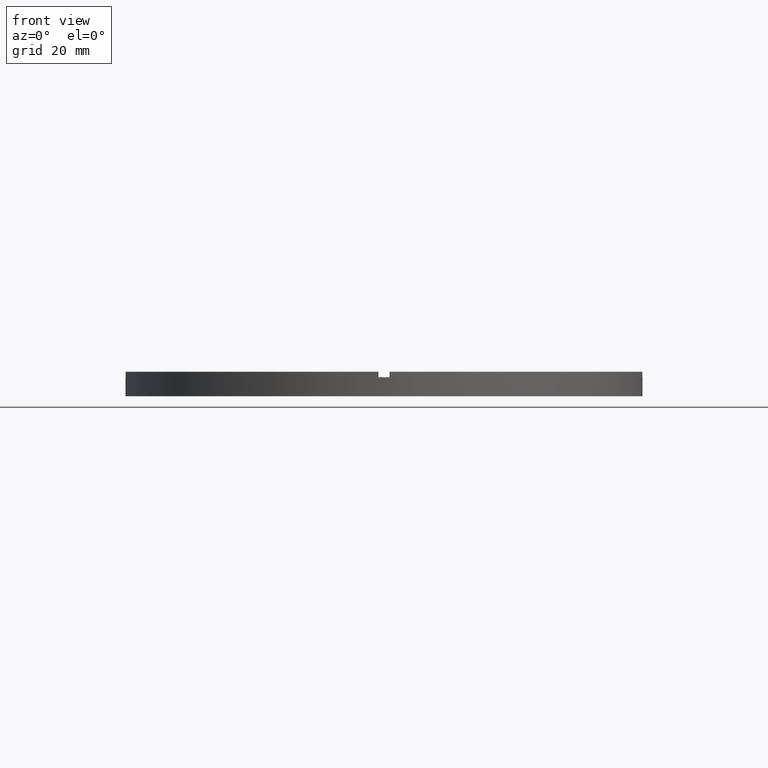
[diagram: clean part render]
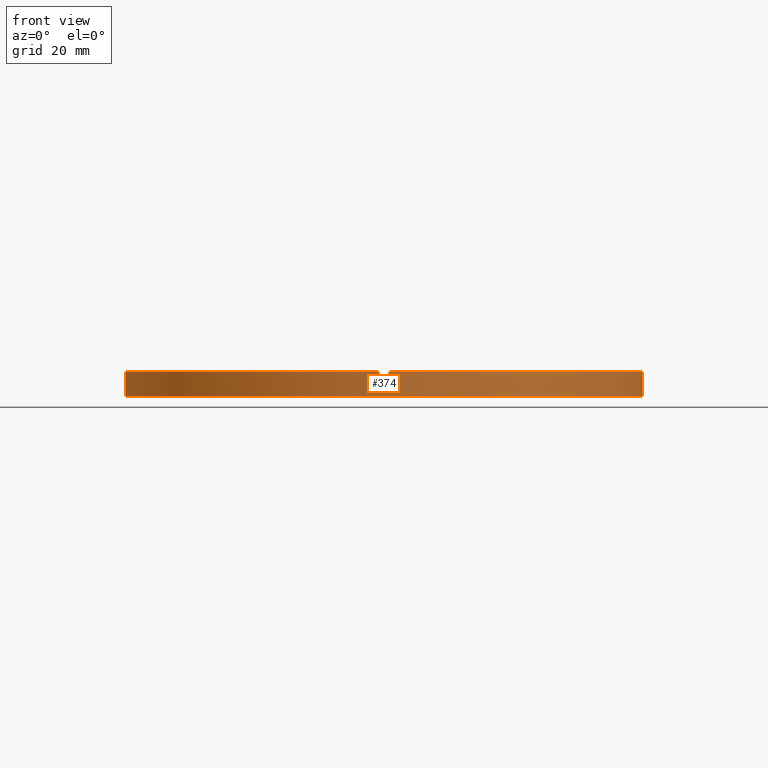
[diagram: same view with one face highlighted and labeled with its STEP entity id]
A machine part, front view. The second image highlights one B-rep face of the part: STEP entity #374.
In plain terms, the highlighted cylindrical surface (partial cylindrical patch) has radius 47.5 mm, axis along (-0, -0, -1).
Its self-contained STEP definition (entity closure, byte-faithful):
#12 = LINE ( 'NONE', #51, #543 ) ;
#19 = AXIS2_PLACEMENT_3D ( 'NONE', #603, #412, #515 ) ;
#25 = DIRECTION ( 'NONE',  ( -0.000000000000000000, -0.000000000000000000, -1.000000000000000000 ) ) ;
#37 = CARTESIAN_POINT ( 'NONE',  ( 0.000000000000000000, 0.000000000000000000, 3.499999999999999556 ) ) ;
#46 = EDGE_CURVE ( 'NONE', #205, #401, #637, .T. ) ;
#51 = CARTESIAN_POINT ( 'NONE',  ( 47.48947251760120736, -1.000000000000155653, 4.500000000000000000 ) ) ;
#63 = DIRECTION ( 'NONE',  ( -0.000000000000000000, 0.000000000000000000, 1.000000000000000000 ) ) ;
#64 = EDGE_CURVE ( 'NONE', #743, #190, #88, .T. ) ;
#70 = CARTESIAN_POINT ( 'NONE',  ( -47.50000000000000711, 0.000000000000000000, 0.000000000000000000 ) ) ;
#73 = AXIS2_PLACEMENT_3D ( 'NONE', #219, #546, #534 ) ;
#81 = DIRECTION ( 'NONE',  ( 1.000000000000000000, 0.000000000000000000, 0.000000000000000000 ) ) ;
#85 = DIRECTION ( 'NONE',  ( 0.000000000000000000, 0.000000000000000000, 1.000000000000000000 ) ) ;
#88 = LINE ( 'NONE', #369, #619 ) ;
#92 = DIRECTION ( 'NONE',  ( 0.000000000000000000, 0.000000000000000000, 1.000000000000000000 ) ) ;
#110 = EDGE_CURVE ( 'NONE', #324, #401, #379, .T. ) ;
#134 = EDGE_CURVE ( 'NONE', #347, #204, #643, .T. ) ;
#139 = CARTESIAN_POINT ( 'NONE',  ( 47.50000000000000711, 5.817072295949929004E-15, 3.499999999999999556 ) ) ;
#140 = VECTOR ( 'NONE', #538, 1000.000000000000000 ) ;
#146 = ORIENTED_EDGE ( 'NONE', *, *, #162, .T. ) ;
#147 = CIRCLE ( 'NONE', #722, 47.50000000000000711 ) ;
#148 = VERTEX_POINT ( 'NONE', #656 ) ;
#157 = EDGE_CURVE ( 'NONE', #148, #743, #381, .T. ) ;
#159 = DIRECTION ( 'NONE',  ( 1.000000000000000000, 0.000000000000000000, 0.000000000000000000 ) ) ;
#162 = EDGE_CURVE ( 'NONE', #347, #480, #645, .T. ) ;
#189 = ORIENTED_EDGE ( 'NONE', *, *, #400, .T. ) ;
#190 = VERTEX_POINT ( 'NONE', #423 ) ;
#191 = ORIENTED_EDGE ( 'NONE', *, *, #399, .F. ) ;
#193 = ORIENTED_EDGE ( 'NONE', *, *, #624, .T. ) ;
#196 = CARTESIAN_POINT ( 'NONE',  ( -47.50000000000000711, 0.000000000000000000, 4.500000000000000000 ) ) ;
#200 = ORIENTED_EDGE ( 'NONE', *, *, #690, .T. ) ;
#202 = VERTEX_POINT ( 'NONE', #70 ) ;
#204 = VERTEX_POINT ( 'NONE', #675 ) ;
#205 = VERTEX_POINT ( 'NONE', #321 ) ;
#217 = ORIENTED_EDGE ( 'NONE', *, *, #64, .F. ) ;
#218 = VERTEX_POINT ( 'NONE', #660 ) ;
#219 = CARTESIAN_POINT ( 'NONE',  ( 0.000000000000000000, 0.000000000000000000, 4.500000000000000000 ) ) ;
#222 = DIRECTION ( 'NONE',  ( 1.000000000000000000, 0.000000000000000000, 0.000000000000000000 ) ) ;
#230 = ORIENTED_EDGE ( 'NONE', *, *, #157, .F. ) ;
#265 = AXIS2_PLACEMENT_3D ( 'NONE', #497, #430, #512 ) ;
#272 = FACE_OUTER_BOUND ( 'NONE', #456, .T. ) ;
#274 = CIRCLE ( 'NONE', #73, 47.50000000000000711 ) ;
#299 = CARTESIAN_POINT ( 'NONE',  ( -47.48947251760120736, -1.000000000000030642, 3.499999999999999556 ) ) ;
#306 = DIRECTION ( 'NONE',  ( -0.000000000000000000, -0.000000000000000000, -1.000000000000000000 ) ) ;
#321 = CARTESIAN_POINT ( 'NONE',  ( -47.48947251760120736, -1.000000000000030642, 4.500000000000000000 ) ) ;
#324 = VERTEX_POINT ( 'NONE', #648 ) ;
#330 = DIRECTION ( 'NONE',  ( -0.000000000000000000, -0.000000000000000000, -1.000000000000000000 ) ) ;
#347 = VERTEX_POINT ( 'NONE', #780 ) ;
#354 = DIRECTION ( 'NONE',  ( -1.000000000000000000, 0.000000000000000000, 0.000000000000000000 ) ) ;
#368 = ORIENTED_EDGE ( 'NONE', *, *, #520, .F. ) ;
#369 = CARTESIAN_POINT ( 'NONE',  ( 47.50000000000000711, 5.817072295949929004E-15, 4.500000000000000000 ) ) ;
#374 = ADVANCED_FACE ( 'NONE', ( #272 ), #526, .T. ) ;
#375 = AXIS2_PLACEMENT_3D ( 'NONE', #541, #636, #81 ) ;
#379 = CIRCLE ( 'NONE', #739, 47.50000000000000711 ) ;
#381 = CIRCLE ( 'NONE', #265, 47.50000000000000711 ) ;
#391 = VECTOR ( 'NONE', #306, 1000.000000000000000 ) ;
#399 = EDGE_CURVE ( 'NONE', #205, #218, #274, .T. ) ;
#400 = EDGE_CURVE ( 'NONE', #148, #204, #12, .T. ) ;
#401 = VERTEX_POINT ( 'NONE', #299 ) ;
#404 = CARTESIAN_POINT ( 'NONE',  ( -1.000000000000157652, -47.48947251760120736, 3.499999999999999556 ) ) ;
#406 = LINE ( 'NONE', #196, #421 ) ;
#412 = DIRECTION ( 'NONE',  ( 0.000000000000000000, 0.000000000000000000, 1.000000000000000000 ) ) ;
#421 = VECTOR ( 'NONE', #330, 1000.000000000000000 ) ;
#422 = ORIENTED_EDGE ( 'NONE', *, *, #46, .T. ) ;
#423 = CARTESIAN_POINT ( 'NONE',  ( 47.50000000000000711, 5.817072295949929004E-15, 0.000000000000000000 ) ) ;
#430 = DIRECTION ( 'NONE',  ( 0.000000000000000000, 0.000000000000000000, 1.000000000000000000 ) ) ;
#432 = CARTESIAN_POINT ( 'NONE',  ( -47.48947251760120736, -1.000000000000030642, 4.500000000000000000 ) ) ;
#438 = CIRCLE ( 'NONE', #375, 47.50000000000000711 ) ;
#447 = ORIENTED_EDGE ( 'NONE', *, *, #134, .F. ) ;
#456 = EDGE_LOOP ( 'NONE', ( #217, #230, #189, #447, #146, #368, #200, #191, #422, #713, #193, #736 ) ) ;
#460 = CARTESIAN_POINT ( 'NONE',  ( -1.000000000000157652, -47.48947251760120736, 4.500000000000000000 ) ) ;
#480 = VERTEX_POINT ( 'NONE', #529 ) ;
#483 = DIRECTION ( 'NONE',  ( -0.000000000000000000, -0.000000000000000000, -1.000000000000000000 ) ) ;
#497 = CARTESIAN_POINT ( 'NONE',  ( 0.000000000000000000, 0.000000000000000000, 3.499999999999999556 ) ) ;
#512 = DIRECTION ( 'NONE',  ( 1.000000000000000000, 0.000000000000000000, 0.000000000000000000 ) ) ;
#515 = DIRECTION ( 'NONE',  ( 1.000000000000000000, 0.000000000000000000, 0.000000000000000000 ) ) ;
#520 = EDGE_CURVE ( 'NONE', #720, #480, #147, .T. ) ;
#525 = DIRECTION ( 'NONE',  ( -0.000000000000000000, -0.000000000000000000, -1.000000000000000000 ) ) ;
#526 = CYLINDRICAL_SURFACE ( 'NONE', #762, 47.50000000000000711 ) ;
#529 = CARTESIAN_POINT ( 'NONE',  ( 0.9999999999998423483, -47.48947251760121446, 3.499999999999999556 ) ) ;
#534 = DIRECTION ( 'NONE',  ( 1.000000000000000000, 0.000000000000000000, 0.000000000000000000 ) ) ;
#538 = DIRECTION ( 'NONE',  ( 0.000000000000000000, 0.000000000000000000, 1.000000000000000000 ) ) ;
#541 = CARTESIAN_POINT ( 'NONE',  ( 0.000000000000000000, 0.000000000000000000, 0.000000000000000000 ) ) ;
#543 = VECTOR ( 'NONE', #92, 1000.000000000000000 ) ;
#546 = DIRECTION ( 'NONE',  ( 0.000000000000000000, 0.000000000000000000, 1.000000000000000000 ) ) ;
#559 = CARTESIAN_POINT ( 'NONE',  ( 0.000000000000000000, 0.000000000000000000, 3.499999999999999556 ) ) ;
#603 = CARTESIAN_POINT ( 'NONE',  ( 0.000000000000000000, 0.000000000000000000, 4.500000000000000000 ) ) ;
#615 = VECTOR ( 'NONE', #25, 1000.000000000000000 ) ;
#619 = VECTOR ( 'NONE', #525, 1000.000000000000000 ) ;
#624 = EDGE_CURVE ( 'NONE', #324, #202, #406, .T. ) ;
#636 = DIRECTION ( 'NONE',  ( 0.000000000000000000, 0.000000000000000000, 1.000000000000000000 ) ) ;
#637 = LINE ( 'NONE', #432, #615 ) ;
#643 = CIRCLE ( 'NONE', #19, 47.50000000000000711 ) ;
#645 = LINE ( 'NONE', #719, #391 ) ;
#648 = CARTESIAN_POINT ( 'NONE',  ( -47.50000000000000711, 0.000000000000000000, 3.499999999999999556 ) ) ;
#656 = CARTESIAN_POINT ( 'NONE',  ( 47.48947251760120736, -1.000000000000155653, 3.499999999999999556 ) ) ;
#660 = CARTESIAN_POINT ( 'NONE',  ( -1.000000000000157652, -47.48947251760120736, 4.500000000000000000 ) ) ;
#668 = LINE ( 'NONE', #460, #140 ) ;
#675 = CARTESIAN_POINT ( 'NONE',  ( 47.48947251760120736, -1.000000000000155653, 4.500000000000000000 ) ) ;
#690 = EDGE_CURVE ( 'NONE', #720, #218, #668, .T. ) ;
#713 = ORIENTED_EDGE ( 'NONE', *, *, #110, .F. ) ;
#719 = CARTESIAN_POINT ( 'NONE',  ( 0.9999999999998423483, -47.48947251760121446, 4.500000000000000000 ) ) ;
#720 = VERTEX_POINT ( 'NONE', #404 ) ;
#722 = AXIS2_PLACEMENT_3D ( 'NONE', #559, #63, #159 ) ;
#736 = ORIENTED_EDGE ( 'NONE', *, *, #773, .T. ) ;
#739 = AXIS2_PLACEMENT_3D ( 'NONE', #37, #85, #222 ) ;
#743 = VERTEX_POINT ( 'NONE', #139 ) ;
#762 = AXIS2_PLACEMENT_3D ( 'NONE', #766, #483, #354 ) ;
#766 = CARTESIAN_POINT ( 'NONE',  ( 0.000000000000000000, 0.000000000000000000, 4.500000000000000000 ) ) ;
#773 = EDGE_CURVE ( 'NONE', #202, #190, #438, .T. ) ;
#780 = CARTESIAN_POINT ( 'NONE',  ( 0.9999999999998423483, -47.48947251760121446, 4.500000000000000000 ) ) ;